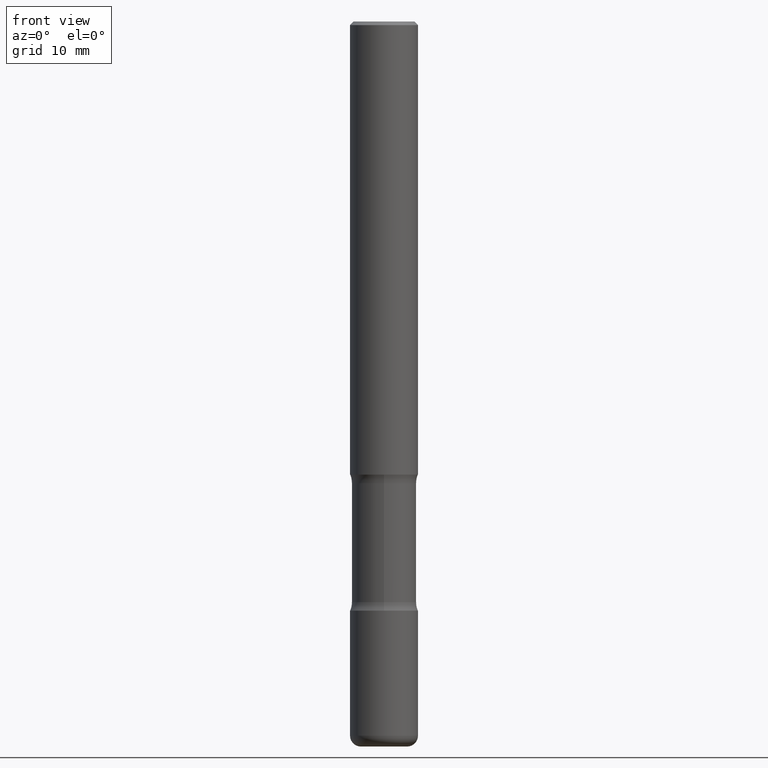
[diagram: clean part render]
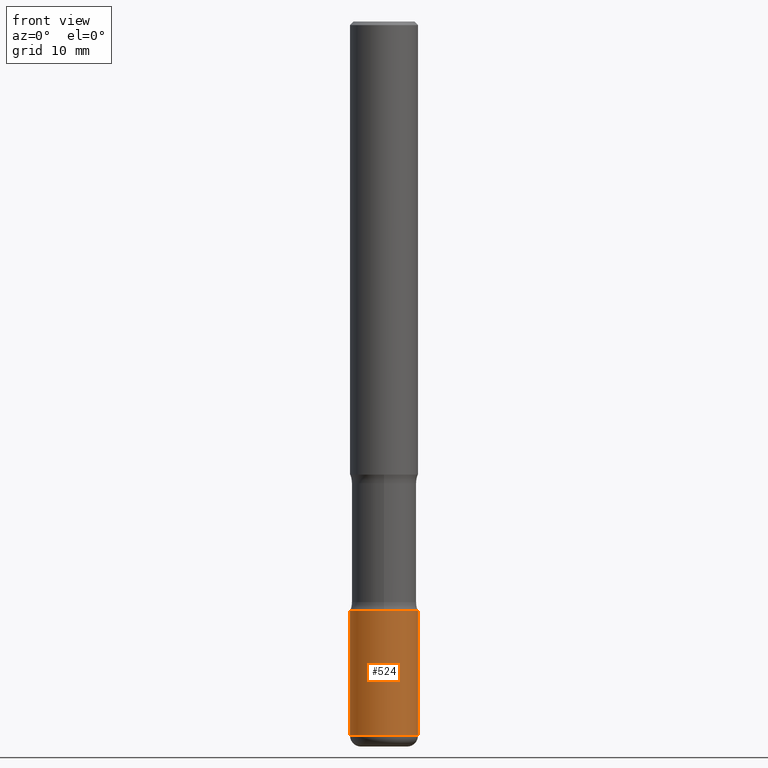
[diagram: same view with one face highlighted and labeled with its STEP entity id]
A machine part, front view. The second image highlights one B-rep face of the part: STEP entity #524.
In plain terms, the highlighted cylindrical surface (edge-blend (fillet) strip) has radius 4.7625 mm, axis along (-0, 0, 1).
Its self-contained STEP definition (entity closure, byte-faithful):
#19 = CARTESIAN_POINT ( 'NONE',  ( -0.1875000000000000833, -1.121960778359092137E-14, -3.250000000000000444 ) ) ;
#21 = LINE ( 'NONE', #207, #400 ) ;
#30 = CARTESIAN_POINT ( 'NONE',  ( 9.635147096369438236E-29, -1.375643647504199401E-14, -3.939999999999999947 ) ) ;
#83 = CYLINDRICAL_SURFACE ( 'NONE', #433, 0.1875000000000001110 ) ;
#92 = EDGE_LOOP ( 'NONE', ( #448, #413, #492, #97 ) ) ;
#97 = ORIENTED_EDGE ( 'NONE', *, *, #306, .F. ) ;
#111 = LINE ( 'NONE', #287, #507 ) ;
#125 = CARTESIAN_POINT ( 'NONE',  ( 0.1875000000000000833, -1.265661985330640259E-14, -3.250000000000000444 ) ) ;
#187 = VERTEX_POINT ( 'NONE', #535 ) ;
#201 = VERTEX_POINT ( 'NONE', #493 ) ;
#207 = CARTESIAN_POINT ( 'NONE',  ( -0.1875000000000001110, 1.332267629550188637E-15, -9.223003294227953596E-30 ) ) ;
#226 = CIRCLE ( 'NONE', #251, 0.1875000000000001388 ) ;
#246 = DIRECTION ( 'NONE',  ( -2.445468806185136877E-29, 3.491481338843145188E-15, 1.000000000000000000 ) ) ;
#251 = AXIS2_PLACEMENT_3D ( 'NONE', #30, #531, #329 ) ;
#260 = DIRECTION ( 'NONE',  ( -2.445468806185136597E-29, 3.491481338843145583E-15, 1.000000000000000000 ) ) ;
#267 = VERTEX_POINT ( 'NONE', #19 ) ;
#287 = CARTESIAN_POINT ( 'NONE',  ( 0.1875000000000001110, -1.309305502066175797E-15, 9.142831454617385217E-30 ) ) ;
#306 = EDGE_CURVE ( 'NONE', #267, #437, #399, .T. ) ;
#329 = DIRECTION ( 'NONE',  ( 1.000000000000000000, -6.982962677686267499E-15, 0.000000000000000000 ) ) ;
#369 = AXIS2_PLACEMENT_3D ( 'NONE', #371, #544, #536 ) ;
#371 = CARTESIAN_POINT ( 'NONE',  ( 7.947773620101696182E-29, -1.134731435124022600E-14, -3.250000000000000444 ) ) ;
#378 = CARTESIAN_POINT ( 'NONE',  ( 0.000000000000000000, 0.000000000000000000, 0.000000000000000000 ) ) ;
#382 = FACE_OUTER_BOUND ( 'NONE', #92, .T. ) ;
#399 = CIRCLE ( 'NONE', #369, 0.1875000000000000833 ) ;
#400 = VECTOR ( 'NONE', #494, 39.37007874015748143 ) ;
#413 = ORIENTED_EDGE ( 'NONE', *, *, #461, .T. ) ;
#426 = DIRECTION ( 'NONE',  ( 1.000000000000000000, -6.982962677686266711E-15, 4.876176775795935793E-29 ) ) ;
#433 = AXIS2_PLACEMENT_3D ( 'NONE', #378, #260, #426 ) ;
#437 = VERTEX_POINT ( 'NONE', #125 ) ;
#448 = ORIENTED_EDGE ( 'NONE', *, *, #468, .F. ) ;
#461 = EDGE_CURVE ( 'NONE', #201, #187, #226, .T. ) ;
#465 = EDGE_CURVE ( 'NONE', #187, #437, #111, .T. ) ;
#468 = EDGE_CURVE ( 'NONE', #201, #267, #21, .T. ) ;
#492 = ORIENTED_EDGE ( 'NONE', *, *, #465, .T. ) ;
#493 = CARTESIAN_POINT ( 'NONE',  ( -0.1875000000000001110, -1.242416884549180617E-14, -3.939999999999999947 ) ) ;
#494 = DIRECTION ( 'NONE',  ( -2.445468806185136877E-29, 3.491481338843145188E-15, 1.000000000000000000 ) ) ;
#507 = VECTOR ( 'NONE', #246, 39.37007874015748143 ) ;
#524 = ADVANCED_FACE ( 'NONE', ( #382 ), #83, .T. ) ;
#531 = DIRECTION ( 'NONE',  ( -2.445468806185136597E-29, 3.491481338843145583E-15, 1.000000000000000000 ) ) ;
#535 = CARTESIAN_POINT ( 'NONE',  ( 0.1875000000000001110, -1.506574197710817060E-14, -3.939999999999999947 ) ) ;
#536 = DIRECTION ( 'NONE',  ( 1.000000000000000000, -6.982962677686269866E-15, 0.000000000000000000 ) ) ;
#544 = DIRECTION ( 'NONE',  ( -2.445468806185136597E-29, 3.491481338843145583E-15, 1.000000000000000000 ) ) ;